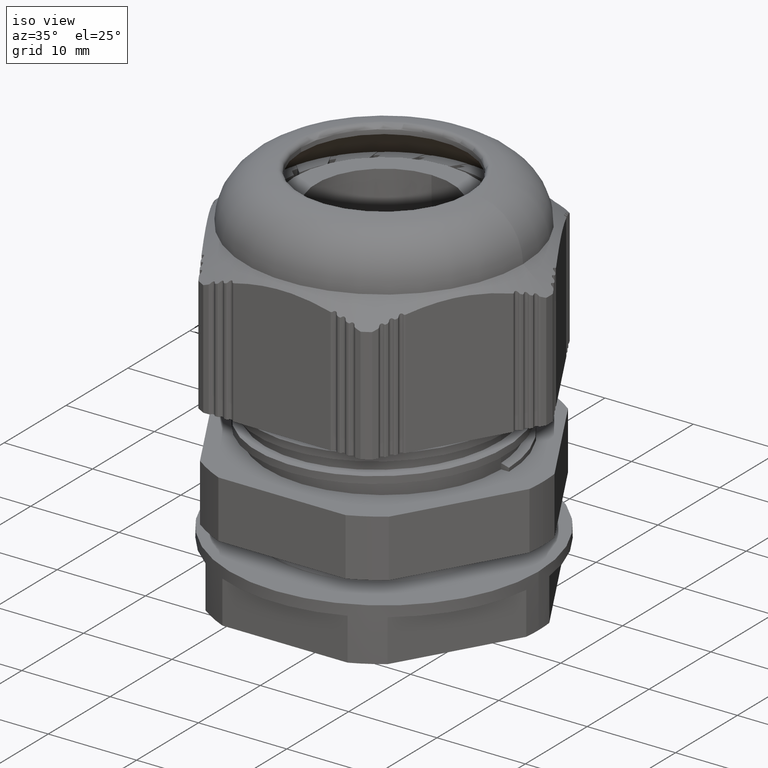
[diagram: clean part render]
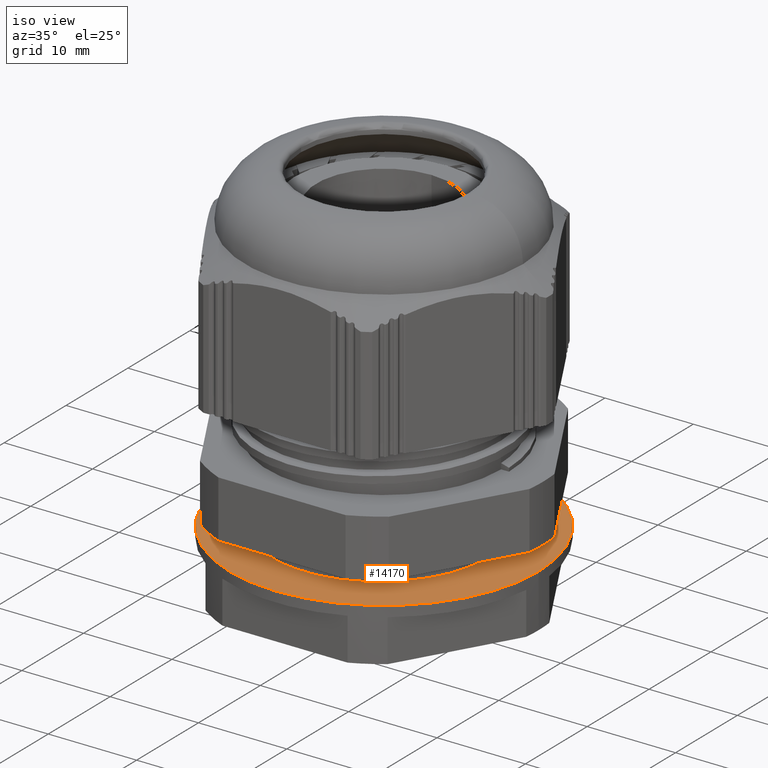
[diagram: same view with one face highlighted and labeled with its STEP entity id]
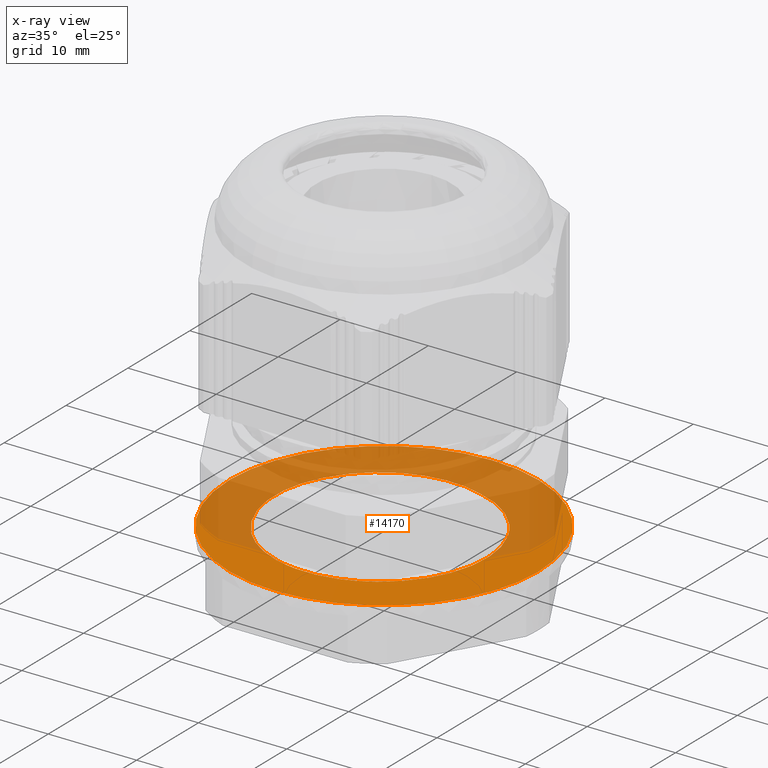
[diagram: x-ray of the same camera — body ghosted, the highlighted face saturated]
A machine part, iso view. The second image highlights one B-rep face of the part: STEP entity #14170.
The next image is the same camera in x-ray: the body ghosted, the highlighted face saturated — about 58% of this face is hidden behind the body in this view.
In plain terms, the highlighted planar face has unit normal (0, 0, 1).
Its self-contained STEP definition (entity closure, byte-faithful):
#1260 = CARTESIAN_POINT ( 'NONE',  ( 18.47520861406803000, 0.0000000000000000000, 7.683063884747839200 ) ) ;
#1261 = PLANE ( 'NONE',  #3739 ) ;
#1262 = DIRECTION ( 'NONE',  ( 1.000000000000000000, 0.0000000000000000000, -0.0000000000000000000 ) ) ;
#1263 = FACE_BOUND ( 'NONE', #11172, .T. ) ;
#1284 = DIRECTION ( 'NONE',  ( 0.0000000000000000000, 0.0000000000000000000, 1.000000000000000000 ) ) ;
#1286 = FACE_OUTER_BOUND ( 'NONE', #11207, .T. ) ;
#1395 = VERTEX_POINT ( 'NONE', #8368 ) ;
#1418 = VERTEX_POINT ( 'NONE', #8395 ) ;
#1605 = CARTESIAN_POINT ( 'NONE',  ( 3.131096955338490900, 10.91147649098173900, 7.683063884747839200 ) ) ;
#1617 = CARTESIAN_POINT ( 'NONE',  ( 3.354691059513704100, -11.96310425159139300, 7.683063884747835600 ) ) ;
#1621 = CARTESIAN_POINT ( 'NONE',  ( -9.133303799511518100, -8.423335274406730000, 7.683063884748326800 ) ) ;
#1685 = CARTESIAN_POINT ( 'NONE',  ( -3.146125792684777900, -12.10092600881500900, 7.683063884747841000 ) ) ;
#2017 = VERTEX_POINT ( 'NONE', #1617 ) ;
#2026 = VERTEX_POINT ( 'NONE', #1605 ) ;
#2030 = VERTEX_POINT ( 'NONE', #1621 ) ;
#2062 = CARTESIAN_POINT ( 'NONE',  ( 0.0000000000000000000, 0.0000000000000000000, 7.683063884747839200 ) ) ;
#2100 = DIRECTION ( 'NONE',  ( -0.0000000000000000000, -0.0000000000000000000, -1.000000000000000000 ) ) ;
#2101 = DIRECTION ( 'NONE',  ( 1.000000000000000000, 0.0000000000000000000, 0.0000000000000000000 ) ) ;
#2418 = CARTESIAN_POINT ( 'NONE',  ( -3.967689836297308300, -11.86729498638963400, 7.683063884747841000 ) ) ;
#2662 = EDGE_CURVE ( 'NONE', #1418, #1395, #12890, .T. ) ;
#3032 = CIRCLE ( 'NONE', #3049, 17.50000000000000400 ) ;
#3049 = AXIS2_PLACEMENT_3D ( 'NONE', #5956, #6018, #6022 ) ;
#3211 = ORIENTED_EDGE ( 'NONE', *, *, #13073, .T. ) ;
#3223 = ORIENTED_EDGE ( 'NONE', *, *, #13813, .F. ) ;
#3595 = CARTESIAN_POINT ( 'NONE',  ( 2.240557590021480500, -12.26553597156720900, 7.683063884747842700 ) ) ;
#3607 = CARTESIAN_POINT ( 'NONE',  ( 2.804948747091329700, -12.13756287738480000, 7.683063884747831200 ) ) ;
#3739 = AXIS2_PLACEMENT_3D ( 'NONE', #1260, #1284, #1262 ) ;
#3858 = CARTESIAN_POINT ( 'NONE',  ( 1.103632373038260700, -12.43804259310070000, 7.683063884747839200 ) ) ;
#4131 = ORIENTED_EDGE ( 'NONE', *, *, #13062, .T. ) ;
#4141 = ORIENTED_EDGE ( 'NONE', *, *, #2662, .F. ) ;
#4148 = ORIENTED_EDGE ( 'NONE', *, *, #13764, .T. ) ;
#5070 = CARTESIAN_POINT ( 'NONE',  ( -8.259343987827554300, 8.415875638665193400, 7.683063884747842700 ) ) ;
#5071 = CARTESIAN_POINT ( 'NONE',  ( -1.955100474084803000, 11.38592685863925200, 7.683063884747839200 ) ) ;
#5073 = CARTESIAN_POINT ( 'NONE',  ( -3.830727013751599000, 10.97319949444681300, 7.683063884747837400 ) ) ;
#5074 = CARTESIAN_POINT ( 'NONE',  ( 3.131096955338490900, 10.91147649098173900, 7.683063884747839200 ) ) ;
#5075 = CARTESIAN_POINT ( 'NONE',  ( -7.266610510298533200, 9.247786341288028600, 7.683063884747837400 ) ) ;
#5077 = CARTESIAN_POINT ( 'NONE',  ( -6.738678050594399100, 9.611374097347658500, 7.683063884747841900 ) ) ;
#5078 = CARTESIAN_POINT ( 'NONE',  ( -1.316290221993044800, 11.45481586232931000, 7.683063884747839200 ) ) ;
#5080 = CARTESIAN_POINT ( 'NONE',  ( 0.6304960958117364900, 11.50008408636587400, 7.683063884747835600 ) ) ;
#5081 = CARTESIAN_POINT ( 'NONE',  ( -3.212223708700874700, 11.14512207622072300, 7.683063884747839200 ) ) ;
#5082 = CARTESIAN_POINT ( 'NONE',  ( 1.896917698181331800, 11.31577519006898100, 7.683063884747838300 ) ) ;
#5083 = CARTESIAN_POINT ( 'NONE',  ( -5.046801380103235400, 10.52213622518111100, 7.683063884747839200 ) ) ;
#5088 = CARTESIAN_POINT ( 'NONE',  ( -5.629398001998579200, 10.24831450736600800, 7.683063884747842700 ) ) ;
#5090 = CARTESIAN_POINT ( 'NONE',  ( -8.017039718798676200, 8.632349595209799300, 7.683063884747838300 ) ) ;
#5146 = CARTESIAN_POINT ( 'NONE',  ( -10.90672881895224600, -5.731608562921025800, 7.683063884747837400 ) ) ;
#5148 = CARTESIAN_POINT ( 'NONE',  ( -11.04265311117822000, -5.440045813054826600, 7.683063884747841000 ) ) ;
#5156 = CARTESIAN_POINT ( 'NONE',  ( -9.939748745923308700, -7.412482542020556200, 7.683063884747839200 ) ) ;
#5161 = CARTESIAN_POINT ( 'NONE',  ( -9.133303799511518100, -8.423335274406730000, 7.683063884748326800 ) ) ;
#5187 = CARTESIAN_POINT ( 'NONE',  ( -9.557677725569437400, -7.932531224960718500, 7.683063884747839200 ) ) ;
#5188 = CARTESIAN_POINT ( 'NONE',  ( -10.45026228273223100, -6.589138041804364600, 7.683063884747842700 ) ) ;
#5191 = CARTESIAN_POINT ( 'NONE',  ( -10.61045845505922400, -6.306420333000855500, 7.683063884747839200 ) ) ;
#5193 = CARTESIAN_POINT ( 'NONE',  ( -10.93071591455529300, 4.824360246667303900, 7.683063884747838300 ) ) ;
#5194 = CARTESIAN_POINT ( 'NONE',  ( -11.61537618778839200, -3.945841420227993400, 7.683063884747840100 ) ) ;
#5195 = CARTESIAN_POINT ( 'NONE',  ( -11.41472210615589900, -4.553203149372207800, 7.683063884747841000 ) ) ;
#5196 = CARTESIAN_POINT ( 'NONE',  ( -12.02673854102955700, -2.054173821287310600, 7.683063884747840100 ) ) ;
#5197 = CARTESIAN_POINT ( 'NONE',  ( -11.92803374883155600, 1.782185397624405300, 7.683063884747836500 ) ) ;
#5198 = CARTESIAN_POINT ( 'NONE',  ( -11.86463842127504800, 2.101236234175712300, 7.683063884747841900 ) ) ;
#5199 = CARTESIAN_POINT ( 'NONE',  ( -12.13320884363609200, -0.7739761750118358000, 7.683063884747839200 ) ) ;
#5200 = CARTESIAN_POINT ( 'NONE',  ( -10.47274946044505300, 5.679426324061548600, 7.683063884747840100 ) ) ;
#5201 = CARTESIAN_POINT ( 'NONE',  ( -11.06668886811953800, 4.533668763303106500, 7.683063884747835600 ) ) ;
#5202 = CARTESIAN_POINT ( 'NONE',  ( -9.575871350224035800, 7.014059196273183100, 7.683063884747839200 ) ) ;
#5203 = CARTESIAN_POINT ( 'NONE',  ( -8.942459809495714400, 7.735627367531507500, 7.683063884747841000 ) ) ;
#5204 = CARTESIAN_POINT ( 'NONE',  ( -11.63822602061250900, 3.040256438487663800, 7.683063884747844500 ) ) ;
#5205 = CARTESIAN_POINT ( 'NONE',  ( -9.958833935350377000, 6.500333291453904900, 7.683063884747843600 ) ) ;
#5206 = CARTESIAN_POINT ( 'NONE',  ( -8.721446163889281100, 7.967939640299065700, 7.683063884747841000 ) ) ;
#5207 = CARTESIAN_POINT ( 'NONE',  ( -12.13654619516098900, -0.1343826027140904700, 7.683063884747841900 ) ) ;
#5208 = CARTESIAN_POINT ( 'NONE',  ( -11.92149181585206300, -2.698712256020032700, 7.683063884747841900 ) ) ;
#5209 = CARTESIAN_POINT ( 'NONE',  ( -12.06485757581955900, 0.8242311676906923800, 7.683063884747842700 ) ) ;
#5210 = CARTESIAN_POINT ( 'NONE',  ( -12.02806812686582900, 1.143638537875365100, 7.683063884747839200 ) ) ;
#5211 = CARTESIAN_POINT ( 'NONE',  ( -11.43842100269259500, 3.648247418161159900, 7.683063884747834700 ) ) ;
#5212 = CARTESIAN_POINT ( 'NONE',  ( -10.63414608421834900, 5.396661073229645400, 7.683063884747838300 ) ) ;
#5956 = CARTESIAN_POINT ( 'NONE',  ( 0.0000000000000000000, 0.0000000000000000000, 7.683063884747839200 ) ) ;
#6018 = DIRECTION ( 'NONE',  ( -0.0000000000000000000, -0.0000000000000000000, -1.000000000000000000 ) ) ;
#6022 = DIRECTION ( 'NONE',  ( 1.000000000000000000, 0.0000000000000000000, 0.0000000000000000000 ) ) ;
#6927 = CARTESIAN_POINT ( 'NONE',  ( -2.023353350018608100, -12.33590221232255300, 7.683063884747842700 ) ) ;
#6928 = CARTESIAN_POINT ( 'NONE',  ( -2.308160698142375000, -12.28674958224501300, 7.683063884747837400 ) ) ;
#6929 = CARTESIAN_POINT ( 'NONE',  ( -2.869015253072082100, -12.16931250952517700, 7.683063884747839200 ) ) ;
#6931 = CARTESIAN_POINT ( 'NONE',  ( -8.755711142201231900, -8.860035066428141100, 7.683063884748815300 ) ) ;
#6932 = CARTESIAN_POINT ( 'NONE',  ( -9.133303799511518100, -8.423335274406730000, 7.683063884748326800 ) ) ;
#7312 = CARTESIAN_POINT ( 'NONE',  ( -7.024663925046818100, -10.33004611989135000, 7.683063884757519400 ) ) ;
#7369 = CARTESIAN_POINT ( 'NONE',  ( -6.057575253490829100, -10.93766159333865000, 7.683063884757518600 ) ) ;
#7728 = B_SPLINE_CURVE_WITH_KNOTS ( 'NONE', 3,
 ( #12128, #12140, #12144, #12131, #12143, #12138, #12136, #12133, #12135, #12137, #12141, #12147, #12149, #12139, #12150, #12151, #12152, #12153, #12154, #12130, #12167, #12158, #12159, #12162, #12170, #12179, #12176, #12171, #12161, #12163, #12177, #12160, #12172, #12164, #12165, #12169, #12166, #12174, #12168, #12157 ),
 .UNSPECIFIED., .F., .F.,
 ( 4, 2, 2, 2, 2, 2, 2, 2, 2, 2, 2, 2, 2, 2, 2, 2, 2, 2, 2, 4 ),
 ( 1.686901515937013200E-017, 0.001929837952199561800, 0.002894756928299335500, 0.003859675904399109300, 0.005789513856598659700, 0.006754432832698434800, 0.007719351808798208300, 0.009649189760997758600, 0.01061410873709753600, 0.01157902771319731100, 0.01350886566539687000, 0.01543870361759642500, 0.01736854156979598200, 0.01929837952199553500, 0.02122821747419509000, 0.02315805542639464600, 0.02508789337859420100, 0.02605281235469397700, 0.02701773133079375300, 0.03087740723519286800 ),
 .UNSPECIFIED. ) ;
#7751 = B_SPLINE_CURVE_WITH_KNOTS ( 'NONE', 3,
 ( #5161, #5187, #5156, #5188, #5191, #5146, #5148, #5195, #5194, #5208, #5196, #5199, #5207, #5209, #5210, #5197, #5198, #5204, #5211, #5201, #5193, #5212, #5200, #5205, #5202, #5203, #5206, #5070, #5090, #5075, #5077, #5088, #5083, #5073, #5081, #5071, #5078, #5080, #5082, #5074 ),
 .UNSPECIFIED., .F., .F.,
 ( 4, 2, 2, 2, 2, 2, 2, 2, 2, 2, 2, 2, 2, 2, 2, 2, 2, 2, 2, 4 ),
 ( 1.010467118257217400E-016, 0.001935138881893775800, 0.002902708322840614400, 0.003870277763787453100, 0.005805416645681134300, 0.007740555527574815100, 0.009675694409468495900, 0.01064326385041533500, 0.01161083329136217700, 0.01354597217325585700, 0.01451354161420269700, 0.01548111105514953700, 0.01741624993704321200, 0.01838381937799005200, 0.01935138881893689100, 0.02128652770083057000, 0.02322166658272425300, 0.02515680546461793200, 0.02709194434651161800, 0.03096222211029897900 ),
 .UNSPECIFIED. ) ;
#7817 = B_SPLINE_CURVE_WITH_KNOTS ( 'NONE', 3,
 ( #15045, #3607, #3595, #3858, #12414, #12870, #12872, #6927, #6928, #6929, #1685, #2418, #14273, #14265, #7369, #7312, #14184, #14180, #6931, #6932 ),
 .UNSPECIFIED., .F., .F.,
 ( 4, 2, 2, 2, 2, 2, 2, 2, 2, 4 ),
 ( 3.150326609205857200E-016, 0.001730088905549023400, 0.003460177811097732000, 0.005190266716646440800, 0.006055311169420795000, 0.006920355622195148300, 0.008650444527743854000, 0.01038053343329256200, 0.01211062233884126900, 0.01384071124438997600 ),
 .UNSPECIFIED. ) ;
#8368 = CARTESIAN_POINT ( 'NONE',  ( 17.50000000000000400, 0.0000000000000000000, 7.683063884747839200 ) ) ;
#8395 = CARTESIAN_POINT ( 'NONE',  ( -17.50000000000000400, 2.143131898507868600E-015, 7.683063884747839200 ) ) ;
#11172 = EDGE_LOOP ( 'NONE', ( #3211, #4148, #4131 ) ) ;
#11207 = EDGE_LOOP ( 'NONE', ( #3223, #4141 ) ) ;
#12128 = CARTESIAN_POINT ( 'NONE',  ( 3.131096955338490900, 10.91147649098173900, 7.683063884747839200 ) ) ;
#12130 = CARTESIAN_POINT ( 'NONE',  ( 11.47638282591482700, 2.777169202663468500, 7.683063884747842700 ) ) ;
#12131 = CARTESIAN_POINT ( 'NONE',  ( 5.254627567497230700, 10.16199825549450400, 7.683063884747833900 ) ) ;
#12133 = CARTESIAN_POINT ( 'NONE',  ( 7.190598349859080900, 9.019691181943080900, 7.683063884747836500 ) ) ;
#12135 = CARTESIAN_POINT ( 'NONE',  ( 7.692968880276196400, 8.625363998224122100, 7.683063884747828500 ) ) ;
#12136 = CARTESIAN_POINT ( 'NONE',  ( 6.388766449550157500, 9.546878929028896000, 7.683063884747837400 ) ) ;
#12137 = CARTESIAN_POINT ( 'NONE',  ( 8.397723007897559100, 7.968870151896942000, 7.683063884747826800 ) ) ;
#12138 = CARTESIAN_POINT ( 'NONE',  ( 6.113401043377772100, 9.711834945244785200, 7.683063884747841900 ) ) ;
#12139 = CARTESIAN_POINT ( 'NONE',  ( 9.851476284636904200, 6.254115085546018800, 7.683063884747842700 ) ) ;
#12140 = CARTESIAN_POINT ( 'NONE',  ( 3.759848749233144700, 10.75606114194815400, 7.683063884747839200 ) ) ;
#12141 = CARTESIAN_POINT ( 'NONE',  ( 8.625615311172016000, 7.738356250244792500, 7.683063884747837400 ) ) ;
#12143 = CARTESIAN_POINT ( 'NONE',  ( 5.546055768949049300, 10.01961676986937300, 7.683063884747839200 ) ) ;
#12144 = CARTESIAN_POINT ( 'NONE',  ( 4.369208512206745000, 10.54895314341697300, 7.683063884747834700 ) ) ;
#12147 = CARTESIAN_POINT ( 'NONE',  ( 9.059933130423621300, 7.261002152793023100, 7.683063884747839200 ) ) ;
#12149 = CARTESIAN_POINT ( 'NONE',  ( 9.265960041685724800, 7.014790580735838600, 7.683063884747844500 ) ) ;
#12150 = CARTESIAN_POINT ( 'NONE',  ( 10.19861512794688200, 5.717755227693837500, 7.683063884747835600 ) ) ;
#12151 = CARTESIAN_POINT ( 'NONE',  ( 10.65384093162708200, 4.868894635592103400, 7.683063884747837400 ) ) ;
#12152 = CARTESIAN_POINT ( 'NONE',  ( 10.79515688780673300, 4.577214889588566000, 7.683063884747837400 ) ) ;
#12153 = CARTESIAN_POINT ( 'NONE',  ( 11.05221713729145300, 3.985228741610527900, 7.683063884747836500 ) ) ;
#12154 = CARTESIAN_POINT ( 'NONE',  ( 11.16775080447332700, 3.685755599906635400, 7.683063884747841900 ) ) ;
#12157 = CARTESIAN_POINT ( 'NONE',  ( 3.354691059513704100, -11.96310425159139300, 7.683063884747835600 ) ) ;
#12158 = CARTESIAN_POINT ( 'NONE',  ( 11.84097895720891500, 0.8923393995186380500, 7.683063884747839200 ) ) ;
#12159 = CARTESIAN_POINT ( 'NONE',  ( 11.89349669126520200, 0.2428295639860574800, 7.683063884747842700 ) ) ;
#12160 = CARTESIAN_POINT ( 'NONE',  ( 9.133198478957236700, -8.095965956735254200, 7.683063884747839200 ) ) ;
#12161 = CARTESIAN_POINT ( 'NONE',  ( 10.83384666006834300, -5.377808977071832300, 7.683063884747839200 ) ) ;
#12162 = CARTESIAN_POINT ( 'NONE',  ( 11.89344037709949100, -1.037883235070768700, 7.683063884747843600 ) ) ;
#12163 = CARTESIAN_POINT ( 'NONE',  ( 10.24400428369364000, -6.513923014486874100, 7.683063884747837400 ) ) ;
#12164 = CARTESIAN_POINT ( 'NONE',  ( 8.026256108206398600, -9.246121446939428200, 7.683063884747837400 ) ) ;
#12165 = CARTESIAN_POINT ( 'NONE',  ( 7.788406908847842500, -9.461123468611115000, 7.683063884747841900 ) ) ;
#12166 = CARTESIAN_POINT ( 'NONE',  ( 7.036967136529716200, -10.07209966880479100, 7.683063884747842700 ) ) ;
#12167 = CARTESIAN_POINT ( 'NONE',  ( 11.63176043780566900, 2.157955445730908900, 7.683063884747835600 ) ) ;
#12168 = CARTESIAN_POINT ( 'NONE',  ( 4.588337577458108100, -11.57161123500503700, 7.683063884747825000 ) ) ;
#12169 = CARTESIAN_POINT ( 'NONE',  ( 7.293985127330995700, -9.874032569512834800, 7.683063884747843600 ) ) ;
#12170 = CARTESIAN_POINT ( 'NONE',  ( 11.84266617729522200, -1.674553984968503200, 7.683063884747837400 ) ) ;
#12171 = CARTESIAN_POINT ( 'NONE',  ( 11.08202417750414500, -4.789741717915077900, 7.683063884747840100 ) ) ;
#12172 = CARTESIAN_POINT ( 'NONE',  ( 8.712345998338859600, -8.576045770204592200, 7.683063884747840100 ) ) ;
#12174 = CARTESIAN_POINT ( 'NONE',  ( 5.727787698171413300, -11.00194869500790600, 7.683063884747843600 ) ) ;
#12176 = CARTESIAN_POINT ( 'NONE',  ( 11.48465464504880600, -3.573485166007186900, 7.683063884747841000 ) ) ;
#12177 = CARTESIAN_POINT ( 'NONE',  ( 9.898645134221002500, -7.066180484656847200, 7.683063884747838300 ) ) ;
#12179 = CARTESIAN_POINT ( 'NONE',  ( 11.63926169969040800, -2.940497748977763500, 7.683063884747835600 ) ) ;
#12414 = CARTESIAN_POINT ( 'NONE',  ( 0.5351370525791957500, -12.48156695407744900, 7.683063884747831200 ) ) ;
#12870 = CARTESIAN_POINT ( 'NONE',  ( -0.6019149505469321100, -12.48846327584713700, 7.683063884747831200 ) ) ;
#12872 = CARTESIAN_POINT ( 'NONE',  ( -1.170471517390766900, -12.45198652697810700, 7.683063884747841000 ) ) ;
#12890 = CIRCLE ( 'NONE', #12891, 17.50000000000000400 ) ;
#12891 = AXIS2_PLACEMENT_3D ( 'NONE', #2062, #2100, #2101 ) ;
#13062 = EDGE_CURVE ( 'NONE', #2030, #2026, #7751, .T. ) ;
#13073 = EDGE_CURVE ( 'NONE', #2026, #2017, #7728, .T. ) ;
#13764 = EDGE_CURVE ( 'NONE', #2017, #2030, #7817, .T. ) ;
#13813 = EDGE_CURVE ( 'NONE', #1395, #1418, #3032, .T. ) ;
#14170 = ADVANCED_FACE ( 'NONE', ( #1286, #1263 ), #1261, .T. ) ;
#14180 = CARTESIAN_POINT ( 'NONE',  ( -8.347971039744337000, -9.258921810034385300, 7.683063884747855200 ) ) ;
#14184 = CARTESIAN_POINT ( 'NONE',  ( -7.482786675142496500, -9.994352840447362500, 7.683063884747854300 ) ) ;
#14265 = CARTESIAN_POINT ( 'NONE',  ( -5.545689425654342300, -11.21018978128788600, 7.683063884747840100 ) ) ;
#14273 = CARTESIAN_POINT ( 'NONE',  ( -4.502426530443889500, -11.67372692044301300, 7.683063884747841900 ) ) ;
#15045 = CARTESIAN_POINT ( 'NONE',  ( 3.354691059513704100, -11.96310425159139300, 7.683063884747835600 ) ) ;